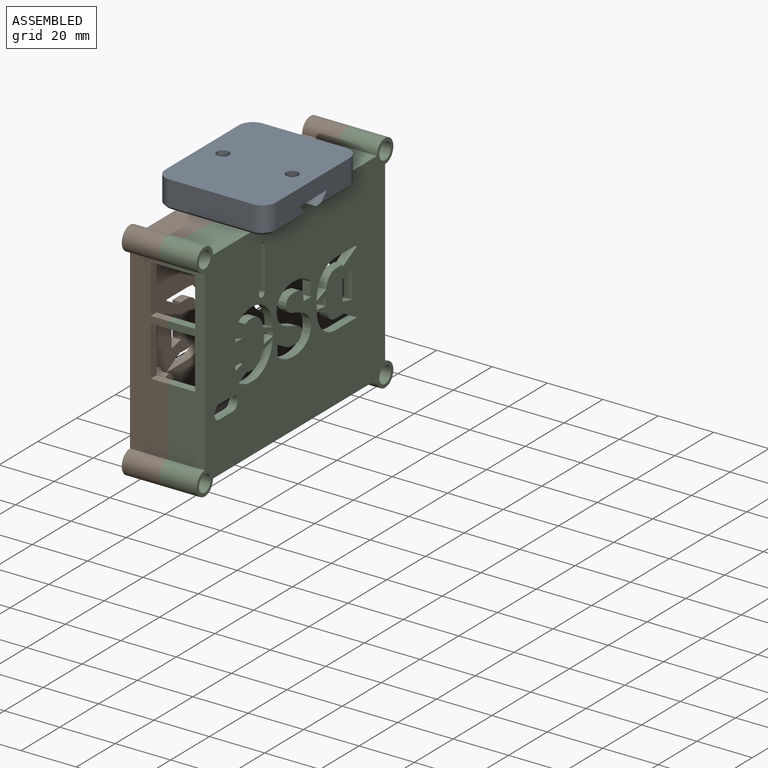
[diagram: assembled view]
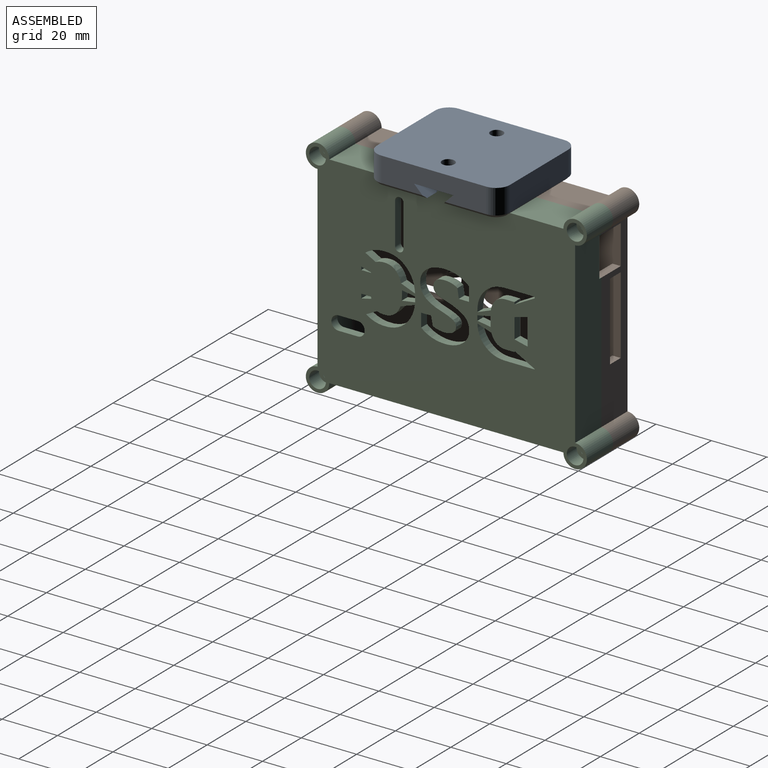
[diagram: assembled view, second angle]
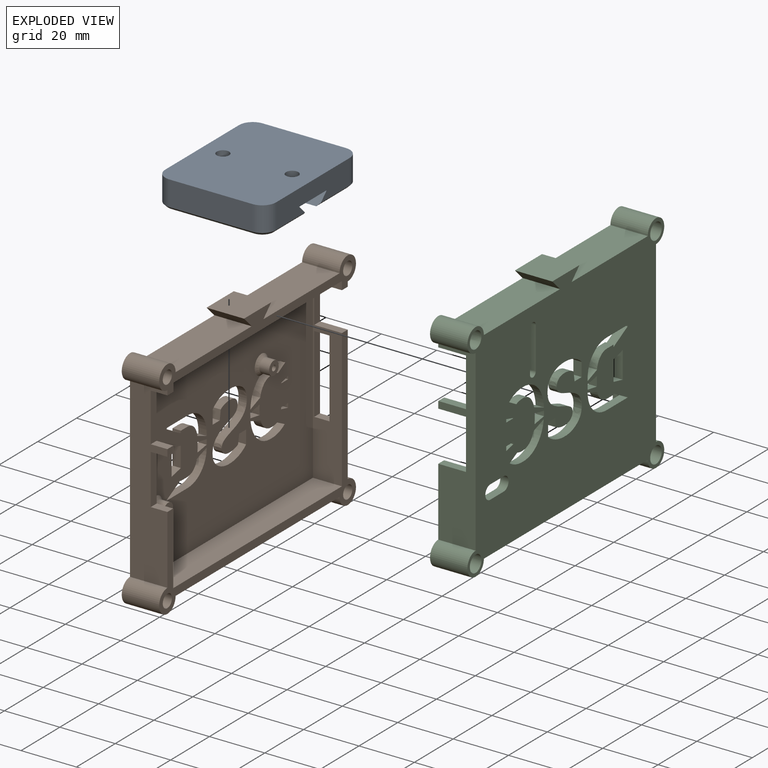
[diagram: exploded view]
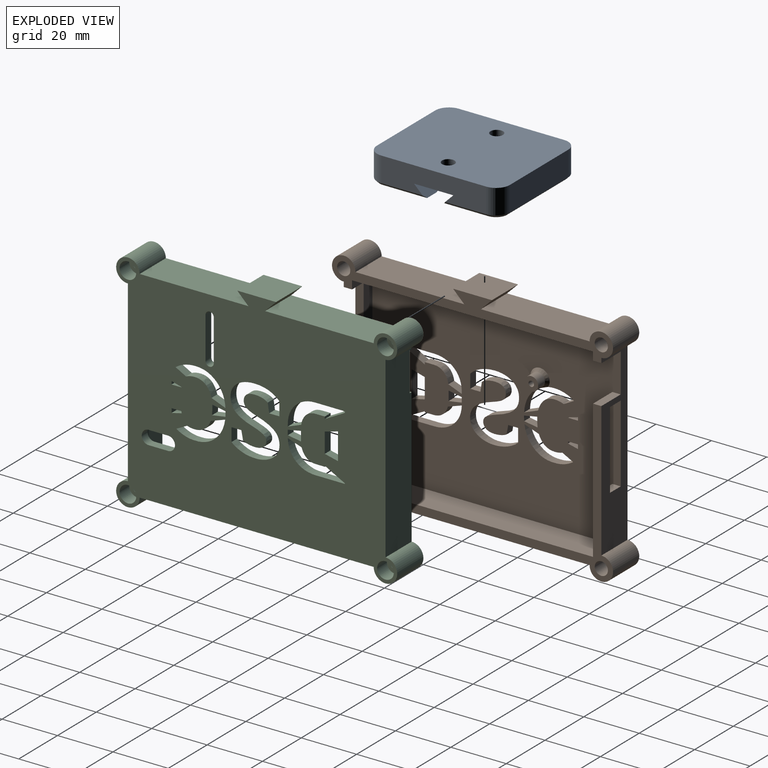
[diagram: exploded view, second angle]
ASSEMBLY  parts=3 mates=2
PART A: 34 faces, bbox 48x40x10 mm
  f0: plane 30x9mm, normal (-1,0,0), area 270mm2, adj f1,f11,f13,f21
  f1: plane 48x40mm, normal (0,0,-1), area 1866.7mm2, adj f0,f2,f8,f9,f10,f11,f12,f13
  f2: plane 30x9mm, normal (1,0,0), area 270mm2, adj f1,f10,f12,f16
  f3: plane 38x19.9mm, normal (0,0,1), area 747.6mm2, adj f4,f14,f15,f16,f17,f18,f32,f33
  f4: plane 40x4mm, normal (-0.71,0,-0.71), area 222.4mm2, adj f3,f5,f8,f9,f14,f18,f32,f33
  f5: plane 40x14.2mm, normal (0,0,1), area 467.5mm2, adj f4,f6,f8,f9,f26,f29
  f6: plane 40x4mm, normal (0.71,0,-0.71), area 222.4mm2, adj f5,f7,f8,f9,f19,f23,f30,f31
  f7: plane 38x19.9mm, normal (0,0,1), area 747.6mm2, adj f6,f19,f20,f21,f22,f23,f30,f31
  f8: plane 38x9mm, normal (0,-1,0), area 308.4mm2, adj f1,f4,f5,f6,f12,f13,f14,f19
  f9: plane 38x9mm, normal (0,1,0), area 308.4mm2, adj f1,f4,f5,f6,f10,f11,f18,f23
  f10: cylinder r=5mm len=9mm, axis (0,0,1), area 70.7mm2, adj f1,f2,f9,f17
  f11: cylinder r=5mm len=9mm, axis (0,0,-1), area 70.7mm2, adj f0,f1,f9,f22
  f12: cylinder r=5mm len=9mm, axis (0,0,-1), area 70.7mm2, adj f1,f2,f8,f15
  f13: cylinder r=5mm len=9mm, axis (0,0,1), area 70.7mm2, adj f0,f1,f8,f20
  f14: plane 15.9x1mm, normal (0,-0.71,0.71), area 21.8mm2, adj f3,f4,f8,f15
  f15: cone r=4mm half-angle=45deg, axis (0,0,-1), area 10mm2, adj f3,f12,f14,f16
  f16: plane 30x1mm, normal (0.71,0,0.71), area 42.4mm2, adj f2,f3,f15,f17
  f17: cone r=4mm half-angle=45deg, axis (0,0,-1), area 10mm2, adj f3,f10,f16,f18
  f18: plane 15.9x1mm, normal (0,0.71,0.71), area 21.8mm2, adj f3,f4,f9,f17
  f19: plane 15.9x1mm, normal (0,-0.71,0.71), area 21.8mm2, adj f6,f7,f8,f20
  f20: cone r=4mm half-angle=45deg, axis (0,0,-1), area 10mm2, adj f7,f13,f19,f21
  f21: plane 30x1mm, normal (-0.71,0,0.71), area 42.4mm2, adj f0,f7,f20,f22
  f22: cone r=4mm half-angle=45deg, axis (0,0,-1), area 10mm2, adj f7,f11,f21,f23
  f23: plane 15.9x1mm, normal (0,0.71,0.71), area 21.8mm2, adj f6,f7,f9,f22
  f24: cylinder r=2.25mm len=4.5mm, axis (0,0,1), area 24mm2, adj f1,f25
  f25: plane 8x8mm, normal (0,0,1), area 34.4mm2, adj f24,f26
  f26: cylinder r=4mm len=8mm, axis (0,0,1), area 108.1mm2, adj f5,f25
  f27: cylinder r=2.25mm len=4.5mm, axis (0,0,1), area 24mm2, adj f1,f28
  f28: plane 8x8mm, normal (0,0,1), area 34.4mm2, adj f27,f29
  f29: cylinder r=4mm len=8mm, axis (0,0,1), area 108.1mm2, adj f5,f28
  f30: cylinder r=3.5mm len=3.25mm, axis (0,0,-1), area 0.9mm2, adj f6,f7
  f31: cylinder r=3.5mm len=3.25mm, axis (0,0,-1), area 0.9mm2, adj f6,f7
  f32: cylinder r=3.5mm len=3.25mm, axis (0,0,-1), area 0.9mm2, adj f3,f4
  f33: cylinder r=3.5mm len=3.25mm, axis (0,0,-1), area 0.9mm2, adj f3,f4
PART B: 149 faces, bbox 13.5x101.5x81.5 mm
  f0: plane 39.26x13.5mm, normal (0,0,1), area 530mm2, adj f1,f4,f43,f148
  f1: plane 101.49x81.49mm, normal (-1,0,0), area 6389.2mm2, adj f0,f6,f8,f10,f11,f32,f33,f43
  f2: plane 87x67mm, normal (1,0,0), area 5144.8mm2, adj f3,f7,f12,f13,f14,f42,f49,f50
  f3: cone r=2.5mm half-angle=45deg, axis (-1,0,0), area 23.6mm2, adj f2,f22,f58
  f4: plane 101.49x10.24mm, normal (1,0,0), area 386.4mm2, adj f0,f6,f7,f8,f11,f12,f14,f17
  f5: plane 3x2.5mm, normal (1,0,0), area 7.5mm2, adj f6,f7,f27,f29
  f6: plane 64.51x13.5mm, normal (0,-1,0), area 657.9mm2, adj f1,f4,f5,f9,f26,f27,f28,f29
  f7: plane 67x10.5mm, normal (0,1,0), area 490.5mm2, adj f2,f4,f5,f9,f13,f14,f26,f27
  f8: plane 64.51x13.5mm, normal (0,1,0), area 576.9mm2, adj f1,f4,f9,f15,f16,f17,f18,f19
  f9: plane 101.49x57.24mm, normal (1,0,0), area 556.4mm2, adj f6,f7,f8,f10,f12,f13,f15,f26
  f10: plane 84.51x13.5mm, normal (0,0,-1), area 1140.9mm2, adj f1,f9,f32,f33
  f11: plane 39.26x13.5mm, normal (0,0,1), area 530mm2, adj f1,f4,f44,f147
  f12: plane 67x10.5mm, normal (0,-1,0), area 409.5mm2, adj f2,f4,f9,f13,f14,f15,f16,f17
  f13: plane 87x10.5mm, normal (0,0,1), area 913.5mm2, adj f2,f7,f9,f12
  f14: plane 87x10.5mm, normal (0,0,-1), area 913.5mm2, adj f2,f4,f7,f12
  f15: plane 10x3mm, normal (0,0,1), area 30mm2, adj f8,f9,f12,f16
  f16: plane 14x3mm, normal (1,0,0), area 42mm2, adj f8,f12,f15,f17
  f17: plane 10x3mm, normal (0,0,-1), area 30mm2, adj f4,f8,f12,f16
  f18: plane 28x3mm, normal (-1,0,0), area 84mm2, adj f8,f12,f19,f21
  f19: plane 5.5x3mm, normal (0,0,1), area 16.5mm2, adj f8,f12,f18,f20
  f20: plane 28x3mm, normal (1,0,0), area 84mm2, adj f8,f12,f19,f21
  f21: plane 5.5x3mm, normal (0,0,-1), area 16.5mm2, adj f8,f12,f18,f20
  f22: cylinder r=2.5mm len=5mm, axis (-1,0,0), area 55mm2, adj f3,f23
  f23: plane 5x5mm, normal (1,0,0), area 16.5mm2, adj f22,f39
  f24: cylinder r=2.5mm len=5mm, axis (-1,0,0), area 55mm2, adj f25,f42
  f25: plane 5x5mm, normal (1,0,0), area 16.5mm2, adj f24,f41
  f26: plane 6x3mm, normal (0,0,1), area 18mm2, adj f6,f7,f9,f28
  f27: plane 6x3mm, normal (0,0,-1), area 18mm2, adj f5,f6,f7,f28
  f28: plane 18x3mm, normal (1,0,0), area 54mm2, adj f6,f7,f26,f27
  f29: plane 6x3mm, normal (0,0,1), area 18mm2, adj f5,f6,f7,f31
  f30: plane 6x3mm, normal (0,0,-1), area 18mm2, adj f4,f6,f7,f31
  f31: plane 17.5x3mm, normal (1,0,0), area 52.5mm2, adj f6,f7,f29,f30
  f32: cylinder r=4.24mm len=13.5mm, axis (1,0,0), area 269.9mm2, adj f1,f8,f9,f10
  f33: cylinder r=4.24mm len=13.5mm, axis (1,0,0), area 269.9mm2, adj f1,f6,f9,f10
  f34: cone r=0mm half-angle=59deg, axis (1,0,0), area 20.7mm2, adj f35
  f35: cylinder r=2.38mm len=10mm, axis (1,0,0), area 149.2mm2, adj f9,f34
  f36: cone r=0mm half-angle=59deg, axis (1,0,0), area 20.7mm2, adj f37
  f37: cylinder r=2.38mm len=10mm, axis (1,0,0), area 149.2mm2, adj f9,f36
  f38: cone r=0mm half-angle=59deg, axis (1,0,0), area 3.7mm2, adj f39
  f39: cylinder r=1mm len=5mm, axis (1,0,0), area 31.4mm2, adj f23,f38
  f40: cone r=0mm half-angle=59deg, axis (1,0,0), area 3.7mm2, adj f41
  f41: cylinder r=1mm len=5mm, axis (1,0,0), area 31.4mm2, adj f25,f40
  f42: cone r=2.5mm half-angle=45deg, axis (-1,0,0), area 26.7mm2, adj f2,f24
  f43: cylinder r=4.24mm len=13.5mm, axis (1,0,0), area 269.9mm2, adj f0,f1,f4,f8
  f44: cylinder r=4.24mm len=13.5mm, axis (1,0,0), area 269.9mm2, adj f1,f4,f6,f11
  f45: cone r=0mm half-angle=59deg, axis (1,0,0), area 20.7mm2, adj f46
  f46: cylinder r=2.38mm len=10mm, axis (1,0,0), area 149.2mm2, adj f4,f45
  f47: cone r=0mm half-angle=59deg, axis (1,0,0), area 20.7mm2, adj f48
  f48: cylinder r=2.38mm len=10mm, axis (1,0,0), area 149.2mm2, adj f4,f47
  f49: extruded ~4.97x3mm, area 15.3mm2, adj f1,f2,f50,f58
  f50: extruded ~3x2.2mm, area 7.6mm2, adj f1,f2,f49,f51
  f51: extruded ~3.75x3mm, area 12.8mm2, adj f1,f2,f50,f52
  f52: extruded ~3x0.61mm, area 2mm2, adj f1,f2,f51,f53
  f53: extruded ~3x2.56mm, area 7.8mm2, adj f1,f2,f52,f54
  f54: extruded ~4.69x3mm, area 16.3mm2, adj f1,f2,f53,f55
  f55: extruded ~3x2.94mm, area 9.8mm2, adj f1,f2,f54,f56
  f56: extruded ~5.05x3mm, area 16.2mm2, adj f1,f2,f55,f57
  f57: extruded ~7.5x3.01mm, area 24.8mm2, adj f1,f2,f56,f58
  f58: extruded ~7.81x3.82mm, area 28.4mm2, adj f1,f2,f3,f49,f57
  f59: extruded ~3.55x3mm, area 11.1mm2, adj f1,f2,f60,f62
  f60: plane 3x1.14mm, normal (0,-1,0), area 3.4mm2, adj f1,f2,f59,f61
  f61: plane 3.53x3mm, normal (0,0,1), area 10.6mm2, adj f1,f2,f60,f62
  f62: plane 3x0.14mm, normal (0,0.99,0.15), area 0.4mm2, adj f1,f2,f59,f61
  f63: plane 7.28x3mm, normal (0,-1,0), area 21.8mm2, adj f1,f2,f64,f66
  f64: extruded ~4.76x3mm, area 14.6mm2, adj f1,f2,f63,f65
  f65: plane 9.7x3mm, normal (0,1,0), area 29.1mm2, adj f1,f2,f64,f66
  f66: extruded ~4.76x3mm, area 14.8mm2, adj f1,f2,f63,f65
  f67: extruded ~4.59x3mm, area 15.8mm2, adj f1,f2,f68,f97
  f68: extruded ~6.38x3mm, area 21.2mm2, adj f1,f2,f67,f69
  f69: extruded ~3.39x3mm, area 11.3mm2, adj f1,f2,f68,f70
  f70: extruded ~3x2.2mm, area 7.4mm2, adj f1,f2,f69,f71
  f71: extruded ~3x2.14mm, area 7.4mm2, adj f1,f2,f70,f72
  f72: extruded ~3x2.97mm, area 9.4mm2, adj f1,f2,f71,f73
  f73: extruded ~3x2.74mm, area 8.3mm2, adj f1,f2,f72,f74
  f74: extruded ~3x1.94mm, area 6.5mm2, adj f1,f2,f73,f75
  f75: plane 3.37x3mm, normal (0,-0.99,0.15), area 10.2mm2, adj f1,f2,f74,f76
  f76: plane 3.68x3mm, normal (0,0,1), area 11mm2, adj f1,f2,f75,f77
  f77: plane 4.95x3mm, normal (0,1,0), area 14.8mm2, adj f1,f2,f76,f78
  f78: extruded ~3.78x3mm, area 13.7mm2, adj f1,f2,f77,f79
  f79: extruded ~5.09x3mm, area 15.6mm2, adj f1,f2,f78,f80
  f80: extruded ~6.35x3mm, area 20.1mm2, adj f1,f2,f79,f81
  f81: extruded ~4.8x3mm, area 16.8mm2, adj f1,f2,f80,f82
  f82: extruded ~4.7x3mm, area 15.9mm2, adj f1,f2,f81,f83
  f83: extruded ~5.95x3mm, area 20mm2, adj f1,f2,f82,f84
  f84: extruded ~3.85x3mm, area 12.6mm2, adj f1,f2,f83,f85
  f85: extruded ~3x1.98mm, area 7.1mm2, adj f1,f2,f84,f86
  f86: extruded ~3x2.12mm, area 7.4mm2, adj f1,f2,f85,f87
  f87: extruded ~3.02x3mm, area 9.6mm2, adj f1,f2,f86,f88
  f88: extruded ~3x2.52mm, area 7.6mm2, adj f1,f2,f87,f89
  f89: extruded ~3x1.81mm, area 5.8mm2, adj f1,f2,f88,f90
  f90: plane 3.26x3mm, normal (0,0.98,-0.19), area 9.9mm2, adj f1,f2,f89,f91
  f91: plane 3.56x3mm, normal (0,0,-1), area 10.7mm2, adj f1,f2,f90,f92
  f92: plane 4.85x3mm, normal (0,-1,0), area 14.5mm2, adj f1,f2,f91,f93
  f93: extruded ~3.77x3mm, area 13.2mm2, adj f1,f2,f92,f94
  f94: extruded ~4.03x3mm, area 12.4mm2, adj f1,f2,f93,f95
  f95: plane 3x1.65mm, normal (0,0,1), area 4.9mm2, adj f1,f2,f94,f96
  f96: extruded ~5.44x3mm, area 17.5mm2, adj f1,f2,f95,f97
  f97: extruded ~4.71x3mm, area 16.6mm2, adj f1,f2,f67,f96
  f98: plane 3x0.6mm, normal (0,-1,0), area 1.8mm2, adj f1,f2,f99,f108
  f99: extruded ~4.85x3mm, area 15.6mm2, adj f1,f2,f98,f100
  f100: extruded ~3.25x3mm, area 10.7mm2, adj f1,f2,f99,f101
  f101: extruded ~4.01x3mm, area 13.5mm2, adj f1,f2,f100,f102
  f102: plane 3.14x3mm, normal (0,0,1), area 9.4mm2, adj f1,f2,f101,f103
  f103: plane 3x0.82mm, normal (0,-1,0), area 2.5mm2, adj f1,f2,f102,f104
  f104: extruded ~7.28x3.97mm, area 24.9mm2, adj f1,f2,f103,f105
  f105: plane 3x0.5mm, normal (0,1,0), area 1.5mm2, adj f1,f2,f104,f106
  f106: plane 10.66x3mm, normal (0,0,-1), area 32mm2, adj f1,f2,f105,f107
  f107: extruded ~7.16x3mm, area 23.6mm2, adj f1,f2,f106,f108
  f108: extruded ~7.12x3mm, area 23.6mm2, adj f1,f2,f98,f107
  f109: plane 3.2x3mm, normal (0,1,0), area 9.6mm2, adj f1,f2,f110,f113
  f110: extruded ~4.77x3mm, area 14.6mm2, adj f1,f2,f109,f111
  f111: plane 3x1.79mm, normal (0,-1,0), area 5.4mm2, adj f1,f2,f110,f112
  f112: extruded ~4.77x3mm, area 14.5mm2, adj f1,f2,f111,f113
  f113: extruded ~3x0.24mm, area 0.7mm2, adj f1,f2,f109,f112
  f114: plane 3x0.36mm, normal (0,-1,0), area 1.1mm2, adj f1,f2,f115,f123
  f115: plane 3.14x3mm, normal (0,0,-1), area 9.4mm2, adj f1,f2,f114,f116
  f116: extruded ~4.01x3mm, area 13.5mm2, adj f1,f2,f115,f117
  f117: extruded ~3x2.36mm, area 8mm2, adj f1,f2,f116,f118
  f118: extruded ~5.02x3mm, area 15.9mm2, adj f1,f2,f117,f119
  f119: extruded ~6.68x3mm, area 22.3mm2, adj f1,f2,f118,f120
  f120: extruded ~7.16x3mm, area 23.7mm2, adj f1,f2,f119,f121
  f121: plane 10.66x3mm, normal (0,0,1), area 32mm2, adj f1,f2,f120,f122
  f122: plane 3x0.2mm, normal (0,1,0), area 0.6mm2, adj f1,f2,f121,f123
  f123: extruded ~7.28x3.82mm, area 24.7mm2, adj f1,f2,f114,f122
  f124: extruded ~6.44x3mm, area 21.5mm2, adj f1,f2,f125,f134
  f125: extruded ~5.21x3mm, area 16.6mm2, adj f1,f2,f124,f126
  f126: extruded ~3x2.05mm, area 7mm2, adj f1,f2,f125,f127
  f127: extruded ~4.76x3mm, area 16.4mm2, adj f1,f2,f126,f128
  f128: extruded ~3x2.52mm, area 7.7mm2, adj f1,f2,f127,f129
  f129: extruded ~3x0.12mm, area 0.4mm2, adj f1,f2,f128,f130
  f130: extruded ~3.92x3mm, area 13.2mm2, adj f1,f2,f129,f131
  f131: extruded ~3x1.92mm, area 6.6mm2, adj f1,f2,f130,f132
  f132: extruded ~3.86x3mm, area 12mm2, adj f1,f2,f131,f133
  f133: plane 3x2.15mm, normal (0,0,1), area 6.5mm2, adj f1,f2,f132,f134
  f134: extruded ~6.77x3.28mm, area 23.2mm2, adj f1,f2,f124,f133
  f135: plane 3x1.55mm, normal (0,-1,0), area 4.7mm2, adj f1,f2,f136,f138
  f136: extruded ~3.64x3mm, area 11.2mm2, adj f1,f2,f135,f137
  f137: plane 3x0.69mm, normal (0,0.99,-0.15), area 2.1mm2, adj f1,f2,f136,f138
  f138: plane 3.53x3mm, normal (0,0,-1), area 10.6mm2, adj f1,f2,f135,f137
  f139: extruded ~3x1.82mm, area 5.5mm2, adj f1,f2,f140,f145
  f140: extruded ~4.83x3mm, area 14.7mm2, adj f1,f2,f139,f141
  f141: extruded ~3x1.09mm, area 3.3mm2, adj f1,f2,f140,f142
  f142: plane 3x0.72mm, normal (0,1,0), area 2.2mm2, adj f1,f2,f141,f143
  f143: extruded ~4.77x3mm, area 14.6mm2, adj f1,f2,f142,f144
  f144: extruded ~3x0.82mm, area 2.5mm2, adj f1,f2,f143,f145
  f145: plane 3x0.83mm, normal (0,-1,0), area 2.5mm2, adj f1,f2,f139,f144
  f146: plane 14x13.5mm, normal (0,0,1), area 189mm2, adj f1,f4,f147,f148
  f147: plane 13.5x4mm, normal (0,-0.71,-0.71), area 76.4mm2, adj f1,f4,f11,f146
  f148: plane 13.5x4mm, normal (0,0.71,-0.71), area 76.4mm2, adj f0,f1,f4,f146
PART C: 147 faces, bbox 13.5x101.5x81.5 mm
  f0: plane 39.26x13.5mm, normal (0,0,1), area 530mm2, adj f4,f6,f17,f140
  f1: plane 3x2.5mm, normal (1,0,0), area 7.5mm2, adj f3,f7,f136,f137
  f2: plane 101.49x57.24mm, normal (1,0,0), area 573.7mm2, adj f3,f7,f8,f9,f11,f12,f15,f19
  f3: plane 67x10.5mm, normal (0,-1,0), area 348.5mm2, adj f1,f2,f5,f6,f12,f13,f134,f135
  f4: plane 101.49x81.49mm, normal (-1,0,0), area 6169.4mm2, adj f0,f7,f8,f9,f10,f17,f18,f19
  f5: plane 87x67mm, normal (1,0,0), area 5112.9mm2, adj f3,f11,f12,f13,f33,f34,f35,f36
  f6: plane 101.49x10.24mm, normal (1,0,0), area 403.7mm2, adj f0,f3,f7,f8,f10,f11,f13,f16
  f7: plane 64.51x13.5mm, normal (0,1,0), area 515.9mm2, adj f1,f2,f4,f6,f18,f19,f134,f135
  f8: plane 64.51x13.5mm, normal (0,-1,0), area 856.9mm2, adj f2,f4,f6,f14,f15,f16,f17,f20
  f9: plane 84.51x13.5mm, normal (0,0,-1), area 1140.9mm2, adj f2,f4,f19,f20
  f10: plane 39.26x13.5mm, normal (0,0,1), area 530mm2, adj f4,f6,f18,f142
  f11: plane 67x10.5mm, normal (0,1,0), area 689.5mm2, adj f2,f5,f6,f12,f13,f14,f15,f16
  f12: plane 87x10.5mm, normal (0,0,1), area 913.5mm2, adj f2,f3,f5,f11
  f13: plane 87x10.5mm, normal (0,0,-1), area 913.5mm2, adj f3,f5,f6,f11
  f14: plane 14x3mm, normal (1,0,0), area 42mm2, adj f8,f11,f15,f16
  f15: plane 3x1mm, normal (0,0,1), area 3mm2, adj f2,f8,f11,f14
  f16: plane 3x1mm, normal (0,0,-1), area 3mm2, adj f6,f8,f11,f14
  f17: cylinder r=4.24mm len=13.5mm, axis (1,0,0), area 269.9mm2, adj f0,f4,f6,f8
  f18: cylinder r=4.24mm len=13.5mm, axis (1,0,0), area 269.9mm2, adj f4,f6,f7,f10
  f19: cylinder r=4.24mm len=13.5mm, axis (1,0,0), area 269.9mm2, adj f2,f4,f7,f9
  f20: cylinder r=4.24mm len=13.5mm, axis (1,0,0), area 269.9mm2, adj f2,f4,f8,f9
  f21: cylinder r=1.7mm len=8.5mm, axis (-1,0,0), area 90.8mm2, adj f2,f22
  f22: plane 6x6mm, normal (-1,0,0), area 19.2mm2, adj f21,f23
  f23: cylinder r=3mm len=6mm, axis (-1,0,0), area 94.2mm2, adj f4,f22
  f24: cylinder r=1.7mm len=8.5mm, axis (-1,0,0), area 90.8mm2, adj f2,f25
  f25: plane 6x6mm, normal (-1,0,0), area 19.2mm2, adj f24,f26
  f26: cylinder r=3mm len=6mm, axis (-1,0,0), area 94.2mm2, adj f4,f25
  f27: cylinder r=1.7mm len=8.5mm, axis (-1,0,0), area 90.8mm2, adj f6,f28
  f28: plane 6x6mm, normal (-1,0,0), area 19.2mm2, adj f27,f29
  f29: cylinder r=3mm len=6mm, axis (-1,0,0), area 94.2mm2, adj f4,f28
  f30: cylinder r=1.7mm len=8.5mm, axis (-1,0,0), area 90.8mm2, adj f6,f31
  f31: plane 6x6mm, normal (-1,0,0), area 19.2mm2, adj f30,f32
  f32: cylinder r=3mm len=6mm, axis (-1,0,0), area 94.2mm2, adj f4,f31
  f33: plane 15x3mm, normal (0,-1,0), area 45mm2, adj f4,f5,f34,f36
  f34: cylinder r=1.5mm len=3mm, axis (-1,0,0), area 14.1mm2, adj f4,f5,f33,f35
  f35: plane 15x3mm, normal (0,1,0), area 45mm2, adj f4,f5,f34,f36
  f36: cylinder r=1.5mm len=3mm, axis (-1,0,0), area 14.1mm2, adj f4,f5,f33,f35
  f37: extruded ~3.55x3mm, area 11.1mm2, adj f4,f5,f38,f40
  f38: plane 3x1.14mm, normal (0,-1,0), area 3.4mm2, adj f4,f5,f37,f39
  f39: plane 3.53x3mm, normal (0,0,1), area 10.6mm2, adj f4,f5,f38,f40
  f40: plane 3x0.14mm, normal (0,0.99,0.15), area 0.4mm2, adj f4,f5,f37,f39
  f41: plane 7.28x3mm, normal (0,-1,0), area 21.8mm2, adj f4,f5,f42,f44
  f42: extruded ~4.76x3mm, area 14.6mm2, adj f4,f5,f41,f43
  f43: plane 9.7x3mm, normal (0,1,0), area 29.1mm2, adj f4,f5,f42,f44
  f44: extruded ~4.76x3mm, area 14.8mm2, adj f4,f5,f41,f43
  f45: extruded ~4.59x3mm, area 15.8mm2, adj f4,f5,f46,f75
  f46: extruded ~6.38x3mm, area 21.2mm2, adj f4,f5,f45,f47
  f47: extruded ~3.39x3mm, area 11.3mm2, adj f4,f5,f46,f48
  f48: extruded ~3x2.2mm, area 7.4mm2, adj f4,f5,f47,f49
  f49: extruded ~3x2.14mm, area 7.4mm2, adj f4,f5,f48,f50
  f50: extruded ~3x2.97mm, area 9.4mm2, adj f4,f5,f49,f51
  f51: extruded ~3x2.74mm, area 8.3mm2, adj f4,f5,f50,f52
  f52: extruded ~3x1.94mm, area 6.5mm2, adj f4,f5,f51,f53
  f53: plane 3.37x3mm, normal (0,-0.99,0.15), area 10.2mm2, adj f4,f5,f52,f54
  f54: plane 3.68x3mm, normal (0,0,1), area 11mm2, adj f4,f5,f53,f55
  f55: plane 4.95x3mm, normal (0,1,0), area 14.8mm2, adj f4,f5,f54,f56
  f56: extruded ~3.78x3mm, area 13.7mm2, adj f4,f5,f55,f57
  f57: extruded ~5.09x3mm, area 15.6mm2, adj f4,f5,f56,f58
  f58: extruded ~6.35x3mm, area 20.1mm2, adj f4,f5,f57,f59
  f59: extruded ~4.8x3mm, area 16.8mm2, adj f4,f5,f58,f60
  f60: extruded ~4.7x3mm, area 15.9mm2, adj f4,f5,f59,f61
  f61: extruded ~5.95x3mm, area 20mm2, adj f4,f5,f60,f62
  f62: extruded ~3.85x3mm, area 12.6mm2, adj f4,f5,f61,f63
  f63: extruded ~3x1.98mm, area 7.1mm2, adj f4,f5,f62,f64
  f64: extruded ~3x2.12mm, area 7.4mm2, adj f4,f5,f63,f65
  f65: extruded ~3.02x3mm, area 9.6mm2, adj f4,f5,f64,f66
  f66: extruded ~3x2.52mm, area 7.6mm2, adj f4,f5,f65,f67
  f67: extruded ~3x1.81mm, area 5.8mm2, adj f4,f5,f66,f68
  f68: plane 3.26x3mm, normal (0,0.98,-0.19), area 9.9mm2, adj f4,f5,f67,f69
  f69: plane 3.56x3mm, normal (0,0,-1), area 10.7mm2, adj f4,f5,f68,f70
  f70: plane 4.85x3mm, normal (0,-1,0), area 14.5mm2, adj f4,f5,f69,f71
  f71: extruded ~3.77x3mm, area 13.2mm2, adj f4,f5,f70,f72
  f72: extruded ~4.03x3mm, area 12.4mm2, adj f4,f5,f71,f73
  f73: plane 3x1.65mm, normal (0,0,1), area 4.9mm2, adj f4,f5,f72,f74
  f74: extruded ~5.44x3mm, area 17.5mm2, adj f4,f5,f73,f75
  f75: extruded ~4.71x3mm, area 16.6mm2, adj f4,f5,f45,f74
  f76: plane 3x0.6mm, normal (0,-1,0), area 1.8mm2, adj f4,f5,f77,f86
  f77: extruded ~4.85x3mm, area 15.6mm2, adj f4,f5,f76,f78
  f78: extruded ~3.25x3mm, area 10.7mm2, adj f4,f5,f77,f79
  f79: extruded ~4.01x3mm, area 13.5mm2, adj f4,f5,f78,f80
  f80: plane 3.14x3mm, normal (0,0,1), area 9.4mm2, adj f4,f5,f79,f81
  f81: plane 3x0.82mm, normal (0,-1,0), area 2.5mm2, adj f4,f5,f80,f82
  f82: extruded ~7.28x3.97mm, area 24.9mm2, adj f4,f5,f81,f83
  f83: plane 3x0.5mm, normal (0,1,0), area 1.5mm2, adj f4,f5,f82,f84
  f84: plane 10.66x3mm, normal (0,0,-1), area 32mm2, adj f4,f5,f83,f85
  f85: extruded ~7.16x3mm, area 23.6mm2, adj f4,f5,f84,f86
  f86: extruded ~7.12x3mm, area 23.6mm2, adj f4,f5,f76,f85
  f87: plane 3.2x3mm, normal (0,1,0), area 9.6mm2, adj f4,f5,f88,f91
  f88: extruded ~4.77x3mm, area 14.6mm2, adj f4,f5,f87,f89
  f89: plane 3x1.79mm, normal (0,-1,0), area 5.4mm2, adj f4,f5,f88,f90
  f90: extruded ~4.77x3mm, area 14.5mm2, adj f4,f5,f89,f91
  f91: extruded ~3x0.24mm, area 0.7mm2, adj f4,f5,f87,f90
  f92: plane 3x0.36mm, normal (0,-1,0), area 1.1mm2, adj f4,f5,f93,f101
  f93: plane 3.14x3mm, normal (0,0,-1), area 9.4mm2, adj f4,f5,f92,f94
  f94: extruded ~4.01x3mm, area 13.5mm2, adj f4,f5,f93,f95
  f95: extruded ~3x2.36mm, area 8mm2, adj f4,f5,f94,f96
  f96: extruded ~5.02x3mm, area 15.9mm2, adj f4,f5,f95,f97
  f97: extruded ~6.68x3mm, area 22.3mm2, adj f4,f5,f96,f98
  f98: extruded ~7.16x3mm, area 23.7mm2, adj f4,f5,f97,f99
  f99: plane 10.66x3mm, normal (0,0,1), area 32mm2, adj f4,f5,f98,f100
  f100: plane 3x0.2mm, normal (0,1,0), area 0.6mm2, adj f4,f5,f99,f101
  f101: extruded ~7.28x3.82mm, area 24.7mm2, adj f4,f5,f92,f100
  f102: extruded ~6.44x3mm, area 21.5mm2, adj f4,f5,f103,f112
  f103: extruded ~5.21x3mm, area 16.6mm2, adj f4,f5,f102,f104
  f104: extruded ~3x2.05mm, area 7mm2, adj f4,f5,f103,f105
  f105: extruded ~4.76x3mm, area 16.4mm2, adj f4,f5,f104,f106
  f106: extruded ~3x2.52mm, area 7.7mm2, adj f4,f5,f105,f107
  f107: extruded ~3x0.12mm, area 0.4mm2, adj f4,f5,f106,f108
  f108: extruded ~3.92x3mm, area 13.2mm2, adj f4,f5,f107,f109
  f109: extruded ~3x1.92mm, area 6.6mm2, adj f4,f5,f108,f110
  f110: extruded ~3.86x3mm, area 12mm2, adj f4,f5,f109,f111
  f111: plane 3x2.15mm, normal (0,0,1), area 6.5mm2, adj f4,f5,f110,f112
  f112: extruded ~6.77x3.28mm, area 23.2mm2, adj f4,f5,f102,f111
  f113: plane 3x1.55mm, normal (0,-1,0), area 4.7mm2, adj f4,f5,f114,f116
  f114: extruded ~3.64x3mm, area 11.2mm2, adj f4,f5,f113,f115
  f115: plane 3x0.69mm, normal (0,0.99,-0.15), area 2.1mm2, adj f4,f5,f114,f116
  f116: plane 3.53x3mm, normal (0,0,-1), area 10.6mm2, adj f4,f5,f113,f115
  f117: extruded ~3x1.82mm, area 5.5mm2, adj f4,f5,f118,f123
  f118: extruded ~4.83x3mm, area 14.7mm2, adj f4,f5,f117,f119
  f119: extruded ~3x1.09mm, area 3.3mm2, adj f4,f5,f118,f120
  f120: plane 3x0.72mm, normal (0,1,0), area 2.2mm2, adj f4,f5,f119,f121
  f121: extruded ~4.77x3mm, area 14.6mm2, adj f4,f5,f120,f122
  f122: extruded ~3x0.82mm, area 2.5mm2, adj f4,f5,f121,f123
  f123: plane 3x0.83mm, normal (0,-1,0), area 2.5mm2, adj f4,f5,f117,f122
  f124: extruded ~7.81x3.3mm, area 26.2mm2, adj f4,f5,f125,f133
  f125: extruded ~4.97x3mm, area 15.3mm2, adj f4,f5,f124,f126
  f126: extruded ~3x2.2mm, area 7.6mm2, adj f4,f5,f125,f127
  f127: extruded ~3.75x3mm, area 12.8mm2, adj f4,f5,f126,f128
  f128: extruded ~3x0.61mm, area 2mm2, adj f4,f5,f127,f129
  f129: extruded ~3x2.56mm, area 7.8mm2, adj f4,f5,f128,f130
  f130: extruded ~4.69x3mm, area 16.3mm2, adj f4,f5,f129,f131
  f131: extruded ~3x2.94mm, area 9.8mm2, adj f4,f5,f130,f132
  f132: extruded ~5.05x3mm, area 16.2mm2, adj f4,f5,f131,f133
  f133: extruded ~7.5x3.01mm, area 24.8mm2, adj f4,f5,f124,f132
  f134: plane 10x3mm, normal (0,0,1), area 30mm2, adj f2,f3,f7,f135
  f135: plane 18x3mm, normal (1,0,0), area 54mm2, adj f3,f7,f134,f136
  f136: plane 10x3mm, normal (0,0,-1), area 30mm2, adj f1,f3,f7,f135
  f137: plane 10x3mm, normal (0,0,1), area 30mm2, adj f1,f3,f7,f138
  f138: plane 17.5x3mm, normal (1,0,0), area 52.5mm2, adj f3,f7,f137,f139
  f139: plane 10x3mm, normal (0,0,-1), area 30mm2, adj f3,f6,f7,f138
  f140: plane 13.5x4mm, normal (0,-0.71,-0.71), area 76.4mm2, adj f0,f4,f6,f141
  f141: plane 14x13.5mm, normal (0,0,1), area 189mm2, adj f4,f6,f140,f142
  f142: plane 13.5x4mm, normal (0,0.71,-0.71), area 76.4mm2, adj f4,f6,f10,f141
  f143: cylinder r=2.5mm len=5mm, axis (-1,0,0), area 23.6mm2, adj f4,f5,f144,f146
  f144: plane 7x3mm, normal (0,0,-1), area 21mm2, adj f4,f5,f143,f145
  f145: cylinder r=2.5mm len=5mm, axis (-1,0,0), area 23.6mm2, adj f4,f5,f144,f146
  f146: plane 7x3mm, normal (0,0,1), area 21mm2, adj f4,f5,f143,f145
PLACE A rot(axis=(-0.71,-0.71,0),180deg) t=(-56.84,-13.97,-6.74)mm
PLACE B t=(-56.84,-13.97,-10.74)mm fixed
PLACE C rot(axis=(0,0,-1),180deg) t=(-56.84,-13.97,-10.74)mm
MATE fastened B.f32 <-> C.f20  axis (1,0,0) through (-56.84,32.53,-83.74)mm
MATE fastened A.f5 <-> B.f146  axis (0,0,-1) through (-56.84,-13.97,-6.74)mm
